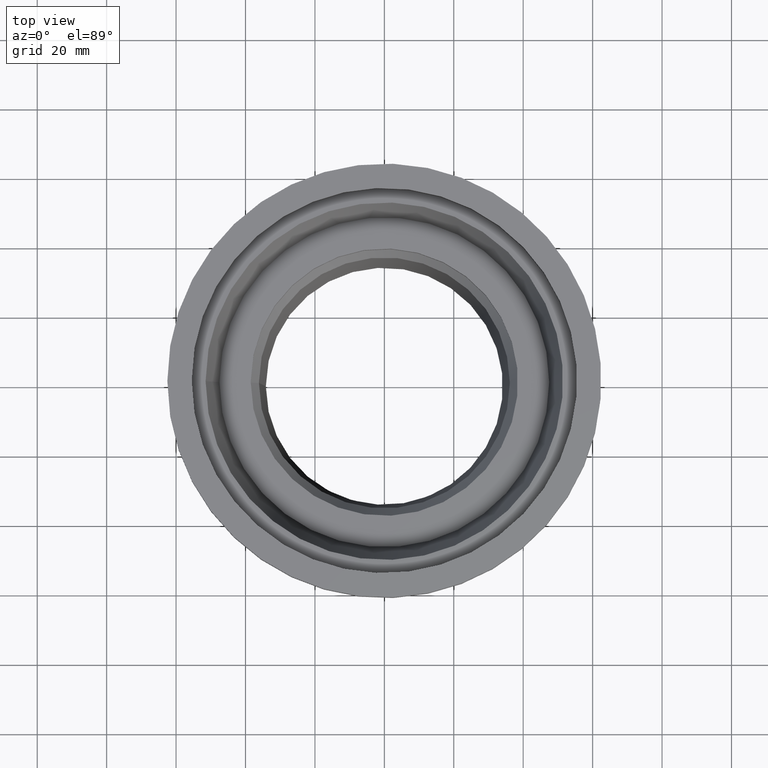
[diagram: clean part render]
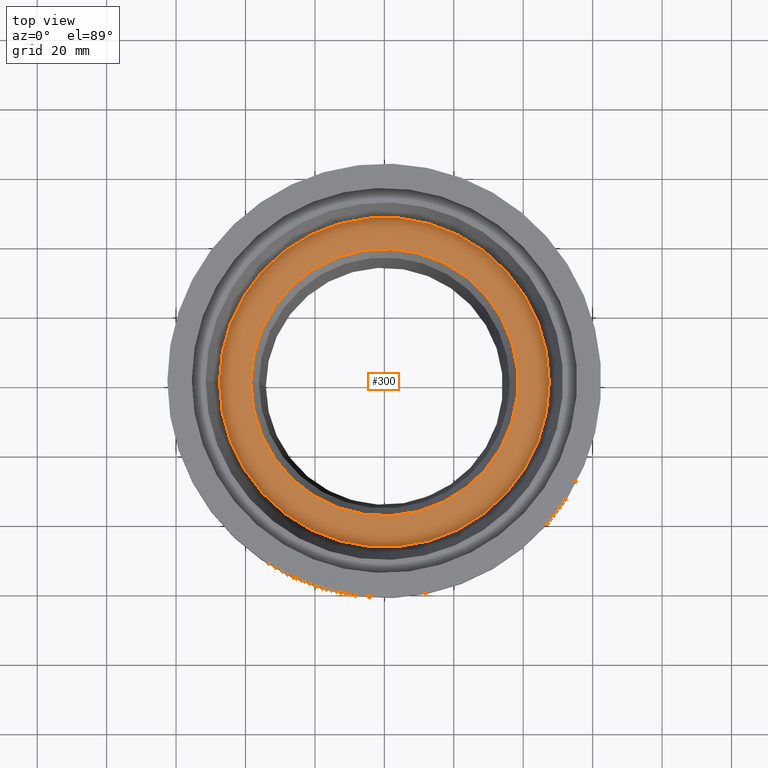
[diagram: same view with one face highlighted and labeled with its STEP entity id]
A machine part, top view. The second image highlights one B-rep face of the part: STEP entity #300.
In plain terms, the highlighted planar face has unit normal (0, 0, 1).
Its self-contained STEP definition (entity closure, byte-faithful):
#68=ORIENTED_EDGE('',*,*,#111,.T.);
#69=ORIENTED_EDGE('',*,*,#110,.F.);
#110=EDGE_CURVE('',#136,#136,#162,.T.);
#111=EDGE_CURVE('',#137,#137,#163,.T.);
#136=VERTEX_POINT('',#539);
#137=VERTEX_POINT('',#542);
#162=CIRCLE('',#363,47.498);
#163=CIRCLE('',#365,38.498);
#198=EDGE_LOOP('',(#68));
#199=EDGE_LOOP('',(#69));
#250=FACE_BOUND('',#198,.T.);
#251=FACE_BOUND('',#199,.T.);
#287=PLANE('',#364);
#300=ADVANCED_FACE('',(#250,#251),#287,.T.);
#363=AXIS2_PLACEMENT_3D('',#538,#440,#441);
#364=AXIS2_PLACEMENT_3D('',#540,#442,#443);
#365=AXIS2_PLACEMENT_3D('',#541,#444,#445);
#440=DIRECTION('',(0.,0.,-1.));
#441=DIRECTION('',(-1.,0.,0.));
#442=DIRECTION('',(0.,0.,1.));
#443=DIRECTION('',(1.,0.,0.));
#444=DIRECTION('',(0.,0.,-1.));
#445=DIRECTION('',(-1.,0.,0.));
#538=CARTESIAN_POINT('',(0.,0.,-27.523));
#539=CARTESIAN_POINT('',(-47.498,0.,-27.523));
#540=CARTESIAN_POINT('',(-47.498,0.,-27.523));
#541=CARTESIAN_POINT('',(0.,0.,-27.523));
#542=CARTESIAN_POINT('',(-38.498,0.,-27.523));